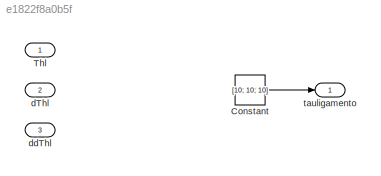
MODEL slx_e1822f8a0b5f
KIND model
CONFIG AbsTol = auto
CONFIG EnableMultiTasking = off
CONFIG FixedStep = auto
CONFIG MaxStep = auto
CONFIG MinStep = auto
CONFIG RelTol = 1e-3
CONFIG SampleTimeConstraint = Unconstrained
CONFIG SolverName = VariableStepAuto
CONFIG StartTime = 0.0
CONFIG StopTime = 10.0
BLOCK [Constant] Constant
  Value = [10; 10; 10]
  VectorParams1D = off
BLOCK [Inport] Thl
  PortDimensions = 3
BLOCK [Inport] dThl
  Port = 2
  PortDimensions = 3
BLOCK [Inport] ddThl
  Port = 3
  PortDimensions = 3
BLOCK [Outport] tauligamento
LINE Constant:1 -> tauligamento:1
